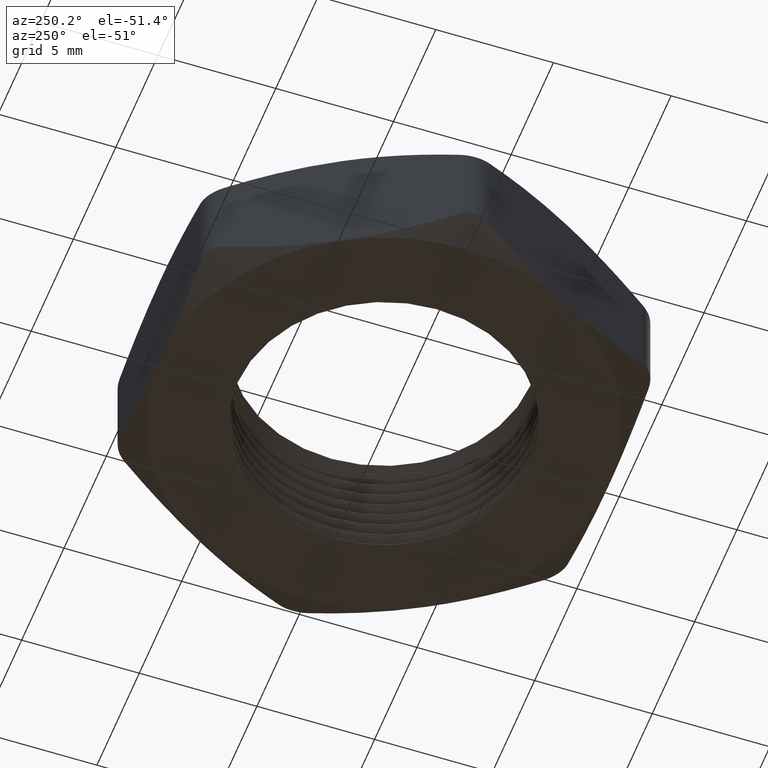
[diagram: clean part render]
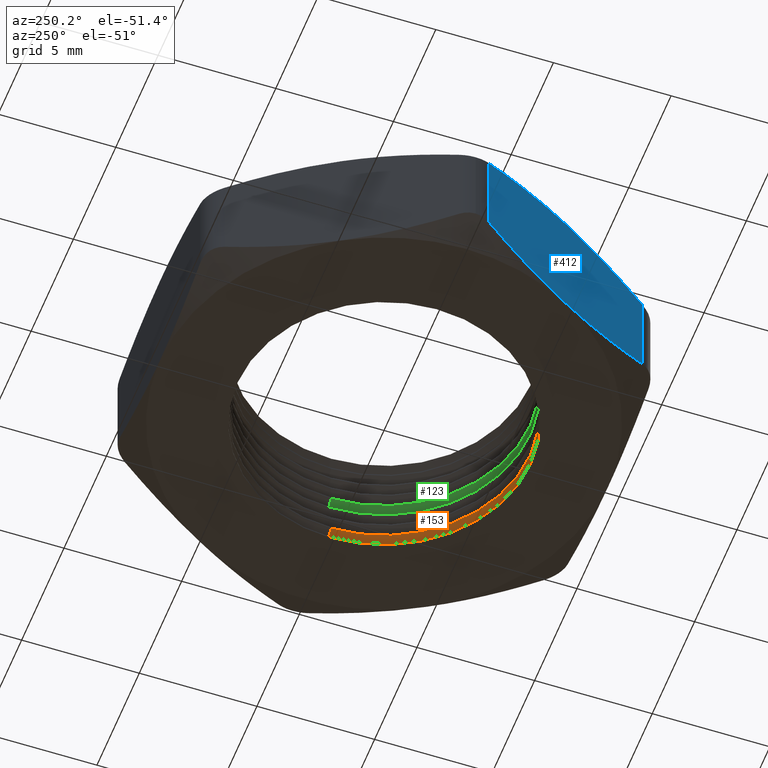
[diagram: same view with three faces highlighted in distinct colors, each labeled with its STEP entity id]
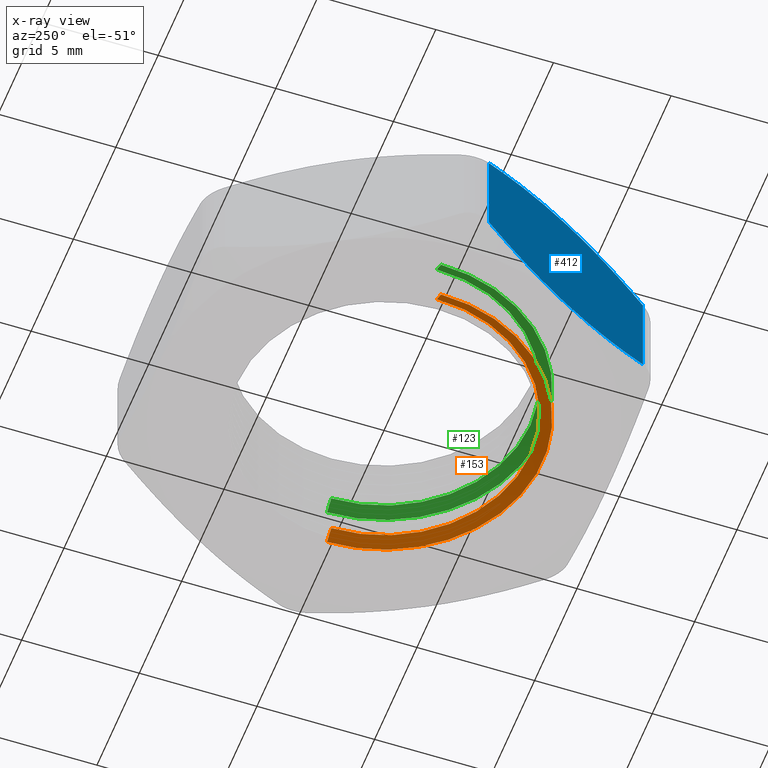
[diagram: x-ray of the same camera — body ghosted, the three highlighted faces saturated]
A machine part, auxiliary view with three faces highlighted in distinct colors.
The next image is the same camera in x-ray (body ghosted, the three faces saturated) — at least one of them is partly hidden behind the body in this view.
Their STEP definitions:

[orange] entity #153 — the highlighted conical surface has half-angle 60 deg.
#33 = VERTEX_POINT ( 'NONE', #789 ) ;
#34 = VERTEX_POINT ( 'NONE', #788 ) ;
#35 = ORIENTED_EDGE ( 'NONE', *, *, #36, .T. ) ;
#36 = EDGE_CURVE ( 'NONE', #34, #150, #864, .T. ) ;
#37 = ORIENTED_EDGE ( 'NONE', *, *, #149, .F. ) ;
#38 = ORIENTED_EDGE ( 'NONE', *, *, #39, .F. ) ;
#39 = EDGE_CURVE ( 'NONE', #33, #56, #973, .T. ) ;
#56 = VERTEX_POINT ( 'NONE', #824 ) ;
#149 = EDGE_CURVE ( 'NONE', #56, #150, #1066, .T. ) ;
#150 = VERTEX_POINT ( 'NONE', #1045 ) ;
#153 = ADVANCED_FACE ( 'NONE', ( #1040 ), #1125, .F. ) ;
#154 = EDGE_LOOP ( 'NONE', ( #155, #35, #37, #38 ) ) ;
#155 = ORIENTED_EDGE ( 'NONE', *, *, #156, .T. ) ;
#156 = EDGE_CURVE ( 'NONE', #33, #34, #1162, .T. ) ;
#788 = CARTESIAN_POINT ( 'NONE',  ( 0.2450000000000000000, 3.000384657911014900E-017, 0.02500000000000000500 ) ) ;
#789 = CARTESIAN_POINT ( 'NONE',  ( -0.2450000000000000000, 0.0000000000000000000, 0.02500000000000000500 ) ) ;
#824 = CARTESIAN_POINT ( 'NONE',  ( -0.2649999999999999600, 0.0000000000000000000, 0.01345299461620779400 ) ) ;
#861 = DIRECTION ( 'NONE',  ( 0.8660254037844441500, 1.060575238724913900E-016, -0.4999999999999902300 ) ) ;
#862 = VECTOR ( 'NONE', #861, 39.37007874015748100 ) ;
#863 = CARTESIAN_POINT ( 'NONE',  ( 0.2649999999999999600, 3.245314017740485600E-017, 0.01345299461620779400 ) ) ;
#864 = LINE ( 'NONE', #863, #862 ) ;
#970 = DIRECTION ( 'NONE',  ( -0.8660254037844441500, 0.0000000000000000000, -0.4999999999999902300 ) ) ;
#971 = VECTOR ( 'NONE', #970, 39.37007874015748100 ) ;
#972 = CARTESIAN_POINT ( 'NONE',  ( -0.2649999999999999600, 0.0000000000000000000, 0.01345299461620779400 ) ) ;
#973 = LINE ( 'NONE', #972, #971 ) ;
#1040 = FACE_OUTER_BOUND ( 'NONE', #154, .T. ) ;
#1045 = CARTESIAN_POINT ( 'NONE',  ( 0.2649999999999999600, 3.245314017740485600E-017, 0.01345299461620779400 ) ) ;
#1048 = DIRECTION ( 'NONE',  ( 1.000000000000000000, 0.0000000000000000000, 0.0000000000000000000 ) ) ;
#1049 = DIRECTION ( 'NONE',  ( 0.0000000000000000000, 0.0000000000000000000, 1.000000000000000000 ) ) ;
#1050 = CARTESIAN_POINT ( 'NONE',  ( 0.0000000000000000000, 0.0000000000000000000, 0.01345299461620779400 ) ) ;
#1051 = AXIS2_PLACEMENT_3D ( 'NONE', #1050, #1049, #1048 ) ;
#1066 = CIRCLE ( 'NONE', #1051, 0.2649999999999999600 ) ;
#1067 = AXIS2_PLACEMENT_3D ( 'NONE', #1135, #1222, #1130 ) ;
#1125 = CONICAL_SURFACE ( 'NONE', #1241, 0.2649999999999999600, 1.047197551196609000 ) ;
#1130 = DIRECTION ( 'NONE',  ( 1.000000000000000000, 0.0000000000000000000, 0.0000000000000000000 ) ) ;
#1134 = DIRECTION ( 'NONE',  ( -1.000000000000000000, 0.0000000000000000000, 0.0000000000000000000 ) ) ;
#1135 = CARTESIAN_POINT ( 'NONE',  ( 0.0000000000000000000, 0.0000000000000000000, 0.02500000000000000500 ) ) ;
#1136 = DIRECTION ( 'NONE',  ( 0.0000000000000000000, 0.0000000000000000000, -1.000000000000000000 ) ) ;
#1162 = CIRCLE ( 'NONE', #1067, 0.2450000000000000000 ) ;
#1214 = CARTESIAN_POINT ( 'NONE',  ( 0.0000000000000000000, 0.0000000000000000000, 0.01345299461620779400 ) ) ;
#1222 = DIRECTION ( 'NONE',  ( 0.0000000000000000000, 0.0000000000000000000, 1.000000000000000000 ) ) ;
#1241 = AXIS2_PLACEMENT_3D ( 'NONE', #1214, #1136, #1134 ) ;

[blue] entity #412 — the highlighted planar face has unit normal (0.866, 0.5, 0).
#91 = VERTEX_POINT ( 'NONE', #963 ) ;
#100 = VERTEX_POINT ( 'NONE', #890 ) ;
#102 = EDGE_CURVE ( 'NONE', #91, #100, #889, .T. ) ;
#282 = ORIENTED_EDGE ( 'NONE', *, *, #283, .F. ) ;
#283 = EDGE_CURVE ( 'NONE', #284, #285, #1274, .T. ) ;
#284 = VERTEX_POINT ( 'NONE', #1273 ) ;
#285 = VERTEX_POINT ( 'NONE', #1272 ) ;
#286 = ORIENTED_EDGE ( 'NONE', *, *, #287, .T. ) ;
#287 = EDGE_CURVE ( 'NONE', #284, #288, #1352, .T. ) ;
#288 = VERTEX_POINT ( 'NONE', #1348 ) ;
#289 = ORIENTED_EDGE ( 'NONE', *, *, #290, .F. ) ;
#290 = EDGE_CURVE ( 'NONE', #291, #288, #1310, .T. ) ;
#291 = VERTEX_POINT ( 'NONE', #1309 ) ;
#292 = ORIENTED_EDGE ( 'NONE', *, *, #293, .F. ) ;
#293 = EDGE_CURVE ( 'NONE', #91, #291, #1381, .T. ) ;
#294 = ORIENTED_EDGE ( 'NONE', *, *, #102, .T. ) ;
#295 = ORIENTED_EDGE ( 'NONE', *, *, #296, .F. ) ;
#296 = EDGE_CURVE ( 'NONE', #285, #100, #1263, .T. ) ;
#412 = ADVANCED_FACE ( 'NONE', ( #1652 ), #1649, .F. ) ;
#413 = EDGE_LOOP ( 'NONE', ( #282, #286, #289, #292, #294, #295 ) ) ;
#880 = DIRECTION ( 'NONE',  ( 0.0000000000000000000, 0.0000000000000000000, -1.000000000000000000 ) ) ;
#881 = VECTOR ( 'NONE', #880, 39.37007874015748100 ) ;
#882 = CARTESIAN_POINT ( 'NONE',  ( -0.4185789451624787300, -0.02500000000000002900, 0.2000000000000000100 ) ) ;
#889 = LINE ( 'NONE', #882, #881 ) ;
#890 = CARTESIAN_POINT ( 'NONE',  ( -0.4185789451624788400, -0.02499999999999998400, 0.02559096649278918800 ) ) ;
#963 = CARTESIAN_POINT ( 'NONE',  ( -0.4185789451624683500, -0.02500000000001800800, 0.1744090335072159800 ) ) ;
#1256 = CARTESIAN_POINT ( 'NONE',  ( -0.3643367906226816500, -0.1189501675749315100, 0.004597593372874871200 ) ) ;
#1257 = CARTESIAN_POINT ( 'NONE',  ( -0.3564809560658953000, -0.1325568721631410800, 0.002889938155333194500 ) ) ;
#1258 = CARTESIAN_POINT ( 'NONE',  ( -0.3406768993189374700, -0.1599303014145736200, 0.0005901327189829690200 ) ) ;
#1259 = CARTESIAN_POINT ( 'NONE',  ( -0.3326984364596727900, -0.1737494044531210400, -1.701735877889249200E-016 ) ) ;
#1260 = CARTESIAN_POINT ( 'NONE',  ( -0.3247595264191646700, -0.1874999999999999400, 0.0000000000000000000 ) ) ;
#1263 = B_SPLINE_CURVE_WITH_KNOTS ( 'NONE', 3,
 ( #1260, #1259, #1258, #1257, #1256, #1418, #1417, #1416 ),
 .UNSPECIFIED., .F., .F.,
 ( 4, 2, 2, 4 ),
 ( 0.005564589980275969800, 0.006762186791010956300, 0.007959783601745942800, 0.01035497722321591400 ),
 .UNSPECIFIED. ) ;
#1265 = CARTESIAN_POINT ( 'NONE',  ( -0.3247595264191646700, -0.1875000000000000300, 0.2000000000000000100 ) ) ;
#1266 = CARTESIAN_POINT ( 'NONE',  ( -0.3407024386049762900, -0.1598860660735655400, 0.2000000000000002300 ) ) ;
#1267 = CARTESIAN_POINT ( 'NONE',  ( -0.3564745969185513800, -0.1325678865294334400, 0.1976226184107980600 ) ) ;
#1272 = CARTESIAN_POINT ( 'NONE',  ( -0.3247595264191646700, -0.1874999999999999400, 0.0000000000000000000 ) ) ;
#1273 = CARTESIAN_POINT ( 'NONE',  ( -0.2309401076758609600, -0.3499999999999819900, 0.02559096649278403200 ) ) ;
#1274 = B_SPLINE_CURVE_WITH_KNOTS ( 'NONE', 3,
 ( #1327, #1326, #1325, #1355, #1354, #1353 ),
 .UNSPECIFIED., .F., .F.,
 ( 4, 2, 4 ),
 ( 0.0007545642487503553800, 0.003159577114513162600, 0.005564589980275969800 ),
 .UNSPECIFIED. ) ;
#1309 = CARTESIAN_POINT ( 'NONE',  ( -0.3247595264191646700, -0.1875000000000000300, 0.2000000000000000100 ) ) ;
#1310 = B_SPLINE_CURVE_WITH_KNOTS ( 'NONE', 3,
 ( #1344, #1343, #1342, #1341, #1340, #1339, #1383, #1382 ),
 .UNSPECIFIED., .F., .F.,
 ( 4, 2, 2, 4 ),
 ( 0.005564589980275969800, 0.006762186791010956300, 0.007959783601745942800, 0.01035497722321591400 ),
 .UNSPECIFIED. ) ;
#1325 = CARTESIAN_POINT ( 'NONE',  ( -0.2617931203539623500, -0.2965610144749438200, 0.01121127792037122100 ) ) ;
#1326 = CARTESIAN_POINT ( 'NONE',  ( -0.2463125204502328300, -0.3233742000398489000, 0.01764798529039914700 ) ) ;
#1327 = CARTESIAN_POINT ( 'NONE',  ( -0.2309401076758609600, -0.3499999999999819900, 0.02559096649278403200 ) ) ;
#1339 = CARTESIAN_POINT ( 'NONE',  ( -0.2617398379950048900, -0.2966533022278050000, 0.1887692090713127300 ) ) ;
#1340 = CARTESIAN_POINT ( 'NONE',  ( -0.2851822622156476900, -0.2560498324250684600, 0.1954024066271251900 ) ) ;
#1341 = CARTESIAN_POINT ( 'NONE',  ( -0.2930380967724341400, -0.2424431278368588400, 0.1971100618446667600 ) ) ;
#1342 = CARTESIAN_POINT ( 'NONE',  ( -0.3088421535193919300, -0.2150696985854264100, 0.1994098672810170300 ) ) ;
#1343 = CARTESIAN_POINT ( 'NONE',  ( -0.3168206163786563300, -0.2012505955468788500, 0.2000000000000001500 ) ) ;
#1344 = CARTESIAN_POINT ( 'NONE',  ( -0.3247595264191646700, -0.1875000000000000300, 0.2000000000000000100 ) ) ;
#1348 = CARTESIAN_POINT ( 'NONE',  ( -0.2309401076758505800, -0.3500000000000000300, 0.1744090335072107900 ) ) ;
#1349 = DIRECTION ( 'NONE',  ( 0.0000000000000000000, 0.0000000000000000000, 1.000000000000000000 ) ) ;
#1350 = VECTOR ( 'NONE', #1349, 39.37007874015748100 ) ;
#1351 = CARTESIAN_POINT ( 'NONE',  ( -0.2309401076758506300, -0.3499999999999999800, 0.2000000000000000100 ) ) ;
#1352 = LINE ( 'NONE', #1351, #1350 ) ;
#1353 = CARTESIAN_POINT ( 'NONE',  ( -0.3247595264191646700, -0.1874999999999999400, 0.0000000000000000000 ) ) ;
#1354 = CARTESIAN_POINT ( 'NONE',  ( -0.3088166142333531600, -0.2151139339264343500, -1.701402400350960700E-016 ) ) ;
#1355 = CARTESIAN_POINT ( 'NONE',  ( -0.2930444559197779600, -0.2424321134705665900, 0.002377381589201922100 ) ) ;
#1378 = CARTESIAN_POINT ( 'NONE',  ( -0.3877259324843670400, -0.07843898552505623700, 0.1887887220796288200 ) ) ;
#1379 = CARTESIAN_POINT ( 'NONE',  ( -0.4032065323880963900, -0.05162579996015103500, 0.1823520147096008300 ) ) ;
#1380 = CARTESIAN_POINT ( 'NONE',  ( -0.4185789451624683500, -0.02500000000001800800, 0.1744090335072159800 ) ) ;
#1381 = B_SPLINE_CURVE_WITH_KNOTS ( 'NONE', 3,
 ( #1380, #1379, #1378, #1267, #1266, #1265 ),
 .UNSPECIFIED., .F., .F.,
 ( 4, 2, 4 ),
 ( 0.0007545642487503563500, 0.003159577114513163100, 0.005564589980275969800 ),
 .UNSPECIFIED. ) ;
#1382 = CARTESIAN_POINT ( 'NONE',  ( -0.2309401076758505800, -0.3500000000000000300, 0.1744090335072107900 ) ) ;
#1383 = CARTESIAN_POINT ( 'NONE',  ( -0.2462782553154251600, -0.3234335489942642400, 0.1823343097906882600 ) ) ;
#1416 = CARTESIAN_POINT ( 'NONE',  ( -0.4185789451624788400, -0.02499999999999998400, 0.02559096649278918800 ) ) ;
#1417 = CARTESIAN_POINT ( 'NONE',  ( -0.4032407975229043700, -0.05156645100573575100, 0.01766569020931175700 ) ) ;
#1418 = CARTESIAN_POINT ( 'NONE',  ( -0.3877792148433245600, -0.07834669777219498100, 0.01123079092868730900 ) ) ;
#1638 = DIRECTION ( 'NONE',  ( -0.4999999999999996100, 0.8660254037844388200, 0.0000000000000000000 ) ) ;
#1639 = DIRECTION ( 'NONE',  ( 0.8660254037844388200, 0.4999999999999996100, 0.0000000000000000000 ) ) ;
#1648 = CARTESIAN_POINT ( 'NONE',  ( -0.4330127018922194100, 1.498552917579708900E-018, 0.2000000000000000100 ) ) ;
#1649 = PLANE ( 'NONE',  #1651 ) ;
#1651 = AXIS2_PLACEMENT_3D ( 'NONE', #1648, #1639, #1638 ) ;
#1652 = FACE_OUTER_BOUND ( 'NONE', #413, .T. ) ;

[green] entity #123 — the highlighted conical surface has half-angle 60 deg.
#32 = VERTEX_POINT ( 'NONE', #790 ) ;
#66 = EDGE_CURVE ( 'NONE', #32, #67, #936, .T. ) ;
#67 = VERTEX_POINT ( 'NONE', #931 ) ;
#68 = ORIENTED_EDGE ( 'NONE', *, *, #69, .T. ) ;
#69 = EDGE_CURVE ( 'NONE', #67, #208, #930, .T. ) ;
#70 = ORIENTED_EDGE ( 'NONE', *, *, #120, .F. ) ;
#71 = ORIENTED_EDGE ( 'NONE', *, *, #72, .F. ) ;
#72 = EDGE_CURVE ( 'NONE', #32, #206, #926, .T. ) ;
#120 = EDGE_CURVE ( 'NONE', #206, #208, #853, .T. ) ;
#123 = ADVANCED_FACE ( 'NONE', ( #845 ), #844, .F. ) ;
#124 = EDGE_LOOP ( 'NONE', ( #125, #68, #70, #71 ) ) ;
#125 = ORIENTED_EDGE ( 'NONE', *, *, #66, .T. ) ;
#206 = VERTEX_POINT ( 'NONE', #1217 ) ;
#208 = VERTEX_POINT ( 'NONE', #1216 ) ;
#790 = CARTESIAN_POINT ( 'NONE',  ( -0.2450000000000000000, 0.0000000000000000000, 0.1000000000000000100 ) ) ;
#840 = DIRECTION ( 'NONE',  ( -1.000000000000000000, 0.0000000000000000000, 0.0000000000000000000 ) ) ;
#841 = DIRECTION ( 'NONE',  ( 0.0000000000000000000, 0.0000000000000000000, -1.000000000000000000 ) ) ;
#842 = CARTESIAN_POINT ( 'NONE',  ( 0.0000000000000000000, 0.0000000000000000000, 0.08845299461620780000 ) ) ;
#843 = AXIS2_PLACEMENT_3D ( 'NONE', #842, #841, #840 ) ;
#844 = CONICAL_SURFACE ( 'NONE', #843, 0.2649999999999999600, 1.047197551196609000 ) ;
#845 = FACE_OUTER_BOUND ( 'NONE', #124, .T. ) ;
#849 = DIRECTION ( 'NONE',  ( 1.000000000000000000, 0.0000000000000000000, 0.0000000000000000000 ) ) ;
#850 = DIRECTION ( 'NONE',  ( 0.0000000000000000000, 0.0000000000000000000, 1.000000000000000000 ) ) ;
#851 = CARTESIAN_POINT ( 'NONE',  ( 0.0000000000000000000, 0.0000000000000000000, 0.08845299461620780000 ) ) ;
#852 = AXIS2_PLACEMENT_3D ( 'NONE', #851, #850, #849 ) ;
#853 = CIRCLE ( 'NONE', #852, 0.2649999999999999600 ) ;
#923 = DIRECTION ( 'NONE',  ( -0.8660254037844441500, 0.0000000000000000000, -0.4999999999999902300 ) ) ;
#924 = VECTOR ( 'NONE', #923, 39.37007874015748100 ) ;
#925 = CARTESIAN_POINT ( 'NONE',  ( -0.2649999999999999600, 0.0000000000000000000, 0.08845299461620780000 ) ) ;
#926 = LINE ( 'NONE', #925, #924 ) ;
#927 = DIRECTION ( 'NONE',  ( 0.8660254037844441500, 1.060575238724913900E-016, -0.4999999999999902300 ) ) ;
#928 = VECTOR ( 'NONE', #927, 39.37007874015748100 ) ;
#929 = CARTESIAN_POINT ( 'NONE',  ( 0.2649999999999999600, 3.245314017740485600E-017, 0.08845299461620780000 ) ) ;
#930 = LINE ( 'NONE', #929, #928 ) ;
#931 = CARTESIAN_POINT ( 'NONE',  ( 0.2450000000000000000, 3.000384657911014900E-017, 0.1000000000000000100 ) ) ;
#932 = DIRECTION ( 'NONE',  ( 1.000000000000000000, 0.0000000000000000000, 0.0000000000000000000 ) ) ;
#933 = DIRECTION ( 'NONE',  ( 0.0000000000000000000, 0.0000000000000000000, 1.000000000000000000 ) ) ;
#934 = CARTESIAN_POINT ( 'NONE',  ( 0.0000000000000000000, 0.0000000000000000000, 0.1000000000000000100 ) ) ;
#935 = AXIS2_PLACEMENT_3D ( 'NONE', #934, #933, #932 ) ;
#936 = CIRCLE ( 'NONE', #935, 0.2450000000000000000 ) ;
#1216 = CARTESIAN_POINT ( 'NONE',  ( 0.2649999999999999600, 3.245314017740485600E-017, 0.08845299461620780000 ) ) ;
#1217 = CARTESIAN_POINT ( 'NONE',  ( -0.2649999999999999600, 0.0000000000000000000, 0.08845299461620780000 ) ) ;